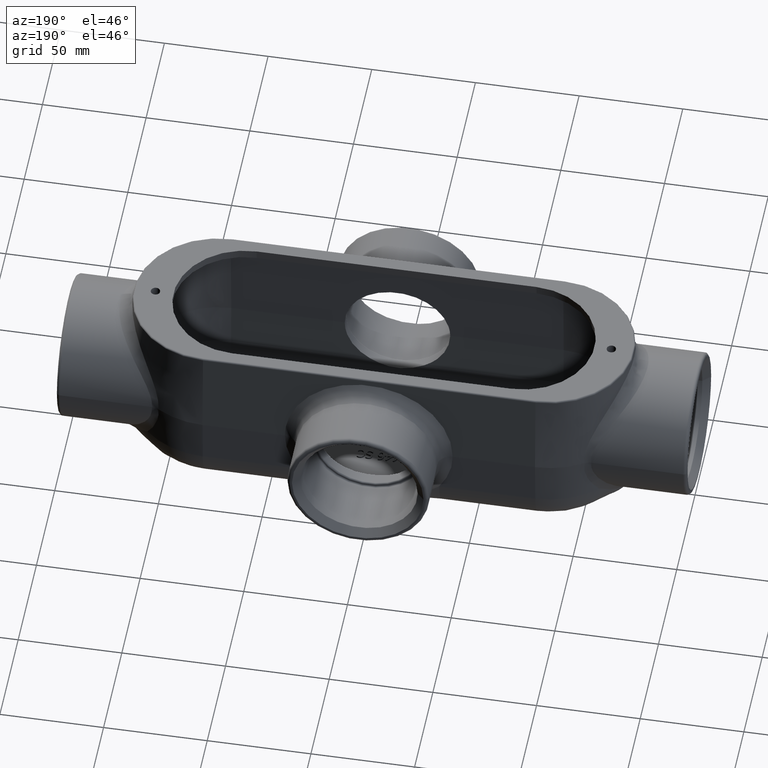
[diagram: clean part render]
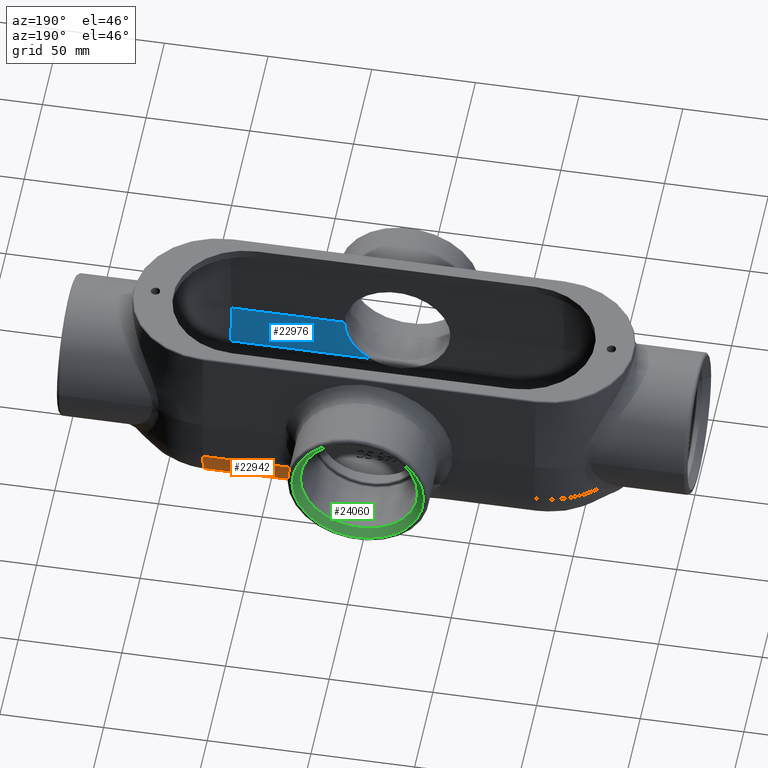
[diagram: same view with three faces highlighted in distinct colors, each labeled with its STEP entity id]
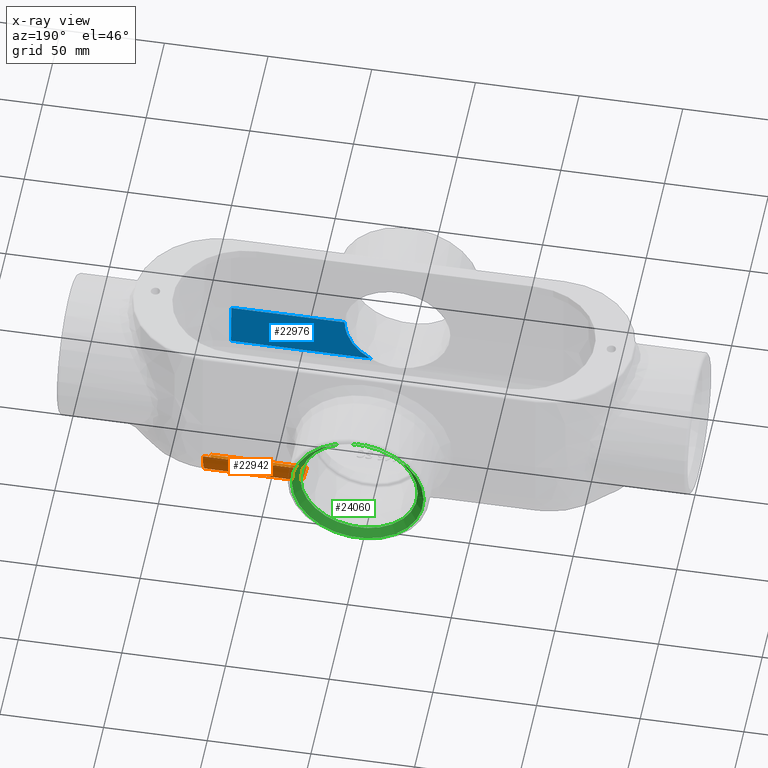
[diagram: x-ray of the same camera — body ghosted, the three highlighted faces saturated]
A machine part, auxiliary view with three faces highlighted in distinct colors.
The next image is the same camera in x-ray (body ghosted, the three faces saturated) — at least one of them is partly hidden behind the body in this view.
Their STEP definitions:

[orange] entity #22942 — the highlighted cylindrical surface (partial cylindrical patch) has radius 22.225 mm, axis along (-1, -0, 0).
#1183=LINE('',#31298,#3929);
#1184=LINE('',#31299,#3930);
#3929=VECTOR('',#25477,0.393700787401575);
#3930=VECTOR('',#25478,0.393700787401575);
#6673=CYLINDRICAL_SURFACE('',#24261,0.875);
#7504=FACE_OUTER_BOUND('',#8792,.T.);
#8792=EDGE_LOOP('',(#16105,#16106,#16107,#16108));
#10239=CIRCLE('',#24259,0.874999999999997);
#10241=CIRCLE('',#24262,0.875);
#10373=VERTEX_POINT('',#31289);
#10374=VERTEX_POINT('',#31291);
#10375=VERTEX_POINT('',#31295);
#10376=VERTEX_POINT('',#31296);
#12665=EDGE_CURVE('',#10373,#10374,#10239,.T.);
#12667=EDGE_CURVE('',#10375,#10376,#10241,.T.);
#12668=EDGE_CURVE('',#10376,#10374,#1183,.T.);
#12669=EDGE_CURVE('',#10373,#10375,#1184,.T.);
#16105=ORIENTED_EDGE('',*,*,#12667,.T.);
#16106=ORIENTED_EDGE('',*,*,#12668,.T.);
#16107=ORIENTED_EDGE('',*,*,#12665,.F.);
#16108=ORIENTED_EDGE('',*,*,#12669,.T.);
#22942=ADVANCED_FACE('',(#7504),#6673,.T.);
#24259=AXIS2_PLACEMENT_3D('',#31292,#25469,#25470);
#24261=AXIS2_PLACEMENT_3D('',#31294,#25473,#25474);
#24262=AXIS2_PLACEMENT_3D('',#31297,#25475,#25476);
#25469=DIRECTION('center_axis',(1.,0.,0.));
#25470=DIRECTION('ref_axis',(0.,0.,-1.));
#25473=DIRECTION('center_axis',(-1.,-5.53943038715288E-17,0.));
#25474=DIRECTION('ref_axis',(0.,0.69779045984168,-0.716301943424654));
#25475=DIRECTION('center_axis',(1.,0.,0.));
#25476=DIRECTION('ref_axis',(0.,0.,-1.));
#25477=DIRECTION('',(1.,5.53943038715288E-17,0.));
#25478=DIRECTION('',(-1.,-5.53943038715288E-17,0.));
#31289=CARTESIAN_POINT('',(3.15625,0.741362737943528,-3.4375));
#31291=CARTESIAN_POINT('',(3.15625,1.61606289729714,-2.58540482976939));
#31292=CARTESIAN_POINT('Origin',(3.15625,0.741362737943528,-2.5625));
#31294=CARTESIAN_POINT('Origin',(1.578125,0.741362737943529,-2.5625));
#31295=CARTESIAN_POINT('',(1.33325258378098,0.741362737943529,-3.4375));
#31296=CARTESIAN_POINT('',(1.33325258378098,1.61606289729714,-2.58540482976939));
#31297=CARTESIAN_POINT('Origin',(1.33325258378098,0.741362737943529,-2.5625));
#31298=CARTESIAN_POINT('',(1.578125,1.61606289729714,-2.58540482976939));
#31299=CARTESIAN_POINT('',(1.578125,0.741362737943529,-3.4375));

[blue] entity #22976 — the highlighted planar face has unit normal (0, -0.9997, -0.0262).
#195=PLANE('',#24331);
#1168=ELLIPSE('',#24332,1.00234347807585,1.002);
#1202=LINE('',#32593,#3948);
#1212=LINE('',#32673,#3958);
#1215=LINE('',#32740,#3961);
#3948=VECTOR('',#25582,0.393700787401575);
#3958=VECTOR('',#25628,0.393700787401575);
#3961=VECTOR('',#25649,0.393700787401575);
#7538=FACE_OUTER_BOUND('',#8831,.T.);
#8831=EDGE_LOOP('',(#16269,#16270,#16271,#16272));
#10410=VERTEX_POINT('',#32576);
#10412=VERTEX_POINT('',#32592);
#10430=VERTEX_POINT('',#32672);
#10436=VERTEX_POINT('',#32738);
#12728=EDGE_CURVE('',#10410,#10412,#1202,.T.);
#12753=EDGE_CURVE('',#10430,#10412,#1212,.T.);
#12763=EDGE_CURVE('',#10410,#10436,#1168,.T.);
#12764=EDGE_CURVE('',#10436,#10430,#1215,.T.);
#16269=ORIENTED_EDGE('',*,*,#12728,.F.);
#16270=ORIENTED_EDGE('',*,*,#12763,.T.);
#16271=ORIENTED_EDGE('',*,*,#12764,.T.);
#16272=ORIENTED_EDGE('',*,*,#12753,.T.);
#22976=ADVANCED_FACE('',(#7538),#195,.F.);
#24331=AXIS2_PLACEMENT_3D('',#32737,#25645,#25646);
#24332=AXIS2_PLACEMENT_3D('',#32739,#25647,#25648);
#25582=DIRECTION('',(1.,8.8305037348143E-17,0.));
#25628=DIRECTION('',(0.,0.0261769483078732,-0.999657324975557));
#25645=DIRECTION('center_axis',(8.82747774173113E-17,-0.999657324975557,
-0.0261769483078732));
#25646=DIRECTION('ref_axis',(-1.,-8.8305037348143E-17,0.));
#25647=DIRECTION('center_axis',(8.82747774173113E-17,-0.999657324975557,
-0.0261769483078732));
#25648=DIRECTION('ref_axis',(5.81245014516467E-18,-0.0261769483078732,0.999657324975557));
#25649=DIRECTION('',(1.,1.10788607743058E-16,0.));
#32576=CARTESIAN_POINT('',(0.511269701657418,-1.42869142245626,-2.58049665196166));
#32592=CARTESIAN_POINT('',(3.15625,-1.42869142245626,-2.58049665196166));
#32593=CARTESIAN_POINT('',(-1.578125,-1.42869142245626,-2.58049665196166));
#32672=CARTESIAN_POINT('',(3.15625,-1.45125705269704,-1.71875));
#32673=CARTESIAN_POINT('',(3.15625,-1.45125705269704,-1.71875));
#32737=CARTESIAN_POINT('Origin',(-3.15625,-1.45125705269704,-1.71875));
#32738=CARTESIAN_POINT('',(1.002,-1.45125705269704,-1.71875));
#32739=CARTESIAN_POINT('Origin',(-9.40898353236539E-17,-1.45125705269704,
-1.71875));
#32740=CARTESIAN_POINT('',(-1.578125,-1.45125705269704,-1.71875));

[green] entity #24060 — the highlighted conical surface has half-angle 44.685 deg.
#174=FACE_BOUND('',#10050,.T.);
#1137=CONICAL_SURFACE('',#25299,1.18225,0.779893631837685);
#8622=FACE_OUTER_BOUND('',#10049,.T.);
#10049=EDGE_LOOP('',(#22185));
#10050=EDGE_LOOP('',(#22186));
#10312=CIRCLE('',#24952,1.1145);
#10329=CIRCLE('',#24987,1.25);
#11833=VERTEX_POINT('',#37066);
#11851=VERTEX_POINT('',#37214);
#14682=EDGE_CURVE('',#11833,#11833,#10312,.T.);
#14703=EDGE_CURVE('',#11851,#11851,#10329,.T.);
#22185=ORIENTED_EDGE('',*,*,#14703,.F.);
#22186=ORIENTED_EDGE('',*,*,#14682,.F.);
#24060=ADVANCED_FACE('',(#8622,#174),#1137,.F.);
#24952=AXIS2_PLACEMENT_3D('',#37067,#28610,#28611);
#24987=AXIS2_PLACEMENT_3D('',#37215,#28680,#28681);
#25299=AXIS2_PLACEMENT_3D('',#41772,#30058,#30059);
#28610=DIRECTION('center_axis',(2.22044604925031E-16,1.,0.));
#28611=DIRECTION('ref_axis',(1.,-2.22044604925031E-16,0.));
#28680=DIRECTION('center_axis',(0.,-1.,0.));
#28681=DIRECTION('ref_axis',(-1.,2.22044604925031E-16,0.));
#30058=DIRECTION('center_axis',(2.22044604925031E-16,1.,0.));
#30059=DIRECTION('ref_axis',(-1.,2.22044604925031E-16,0.));
#37066=CARTESIAN_POINT('',(-1.1145,2.691125,-1.71875));
#37067=CARTESIAN_POINT('Origin',(1.81216153194441E-16,2.691125,-1.71875));
#37214=CARTESIAN_POINT('',(-1.25,2.828125,-1.71875));
#37215=CARTESIAN_POINT('Origin',(2.11636264069171E-16,2.828125,-1.71875));
#41772=CARTESIAN_POINT('Origin',(1.96426208631806E-16,2.759625,-1.71875));